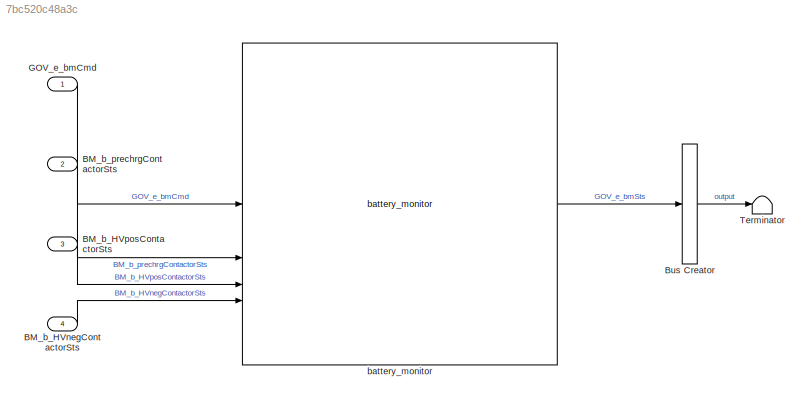
MODEL slx_7bc520c48a3c
KIND model
CONFIG AbsTol = auto
CONFIG EnableMultiTasking = off
CONFIG FixedStep = 1e-3
CONFIG MaxStep = auto
CONFIG MinStep = auto
CONFIG RelTol = 1e-3
CONFIG SampleTimeConstraint = Unconstrained
CONFIG SolverName = FixedStepAuto
CONFIG StartTime = 0.0
CONFIG StopTime = 10.0
BLOCK [Inport] BM_b_HVnegContactorSts
  OutDataTypeStr = boolean
  Port = 4
BLOCK [Inport] BM_b_HVposContactorSts
  OutDataTypeStr = boolean
  Port = 3
BLOCK [Inport] BM_b_prechrgContactorSts
  OutDataTypeStr = boolean
  Port = 2
BLOCK [BusCreator] Bus Creator
  DisplayOption = bar
  InheritFromInputs = on
  Inputs = 1
BLOCK [Inport] GOV_e_bmCmd
  Interpolate = off
  OutDataTypeStr = uint8
BLOCK [Terminator] Terminator
BLOCK [Reference] battery_monitor  REF=battery_monitor_lib/battery_monitor  (lib defined in slx_91b9e2d5ec61)
  SourceBlock = battery_monitor_lib/battery_monitor
  SourceType = SubSystem
LINE BM_b_HVnegContactorSts:1 -> battery_monitor:4
LINE BM_b_HVposContactorSts:1 -> battery_monitor:3
LINE BM_b_prechrgContactorSts:1 -> battery_monitor:2
LINE Bus Creator:1 -> Terminator:1
LINE GOV_e_bmCmd:1 -> battery_monitor:1
LINE battery_monitor:1 -> Bus Creator:1
